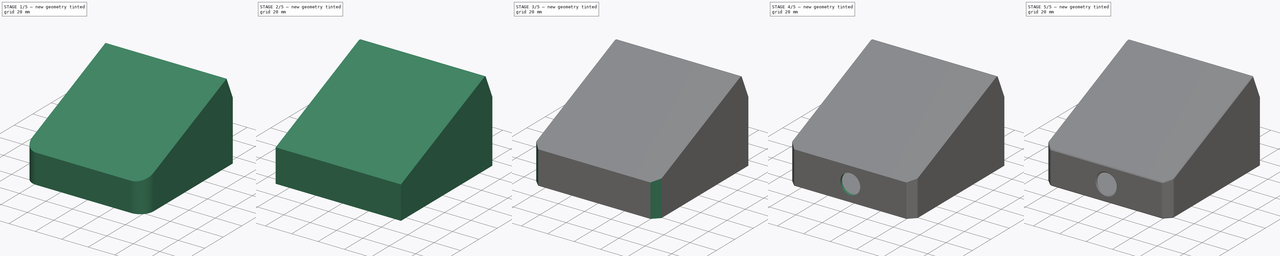
[diagram: build sequence overview — one tinted view per stage of 5, left to right]
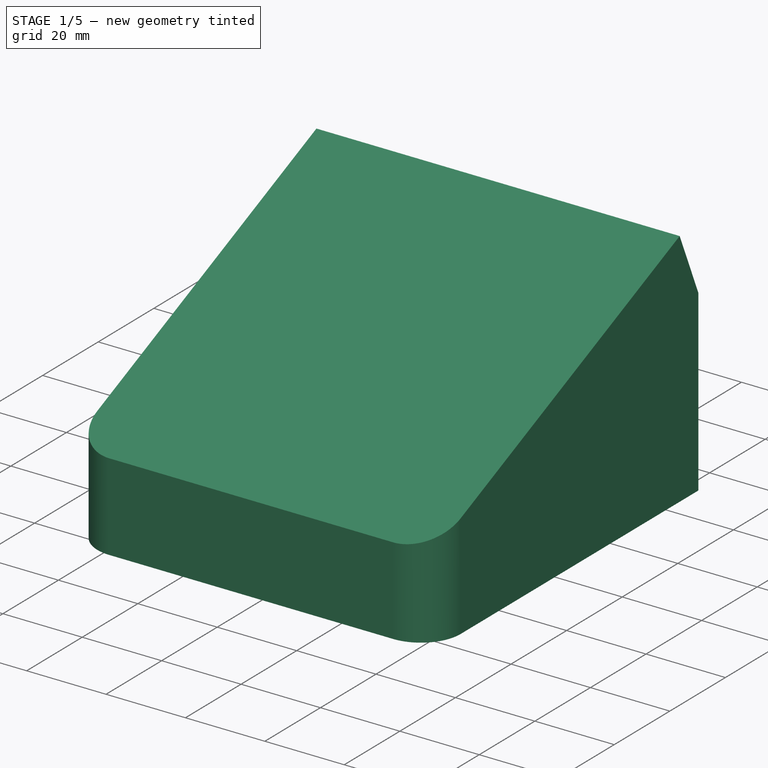
[diagram: stage 1 of 5 — iso view after this stage's code; geometry added in this stage tinted green]
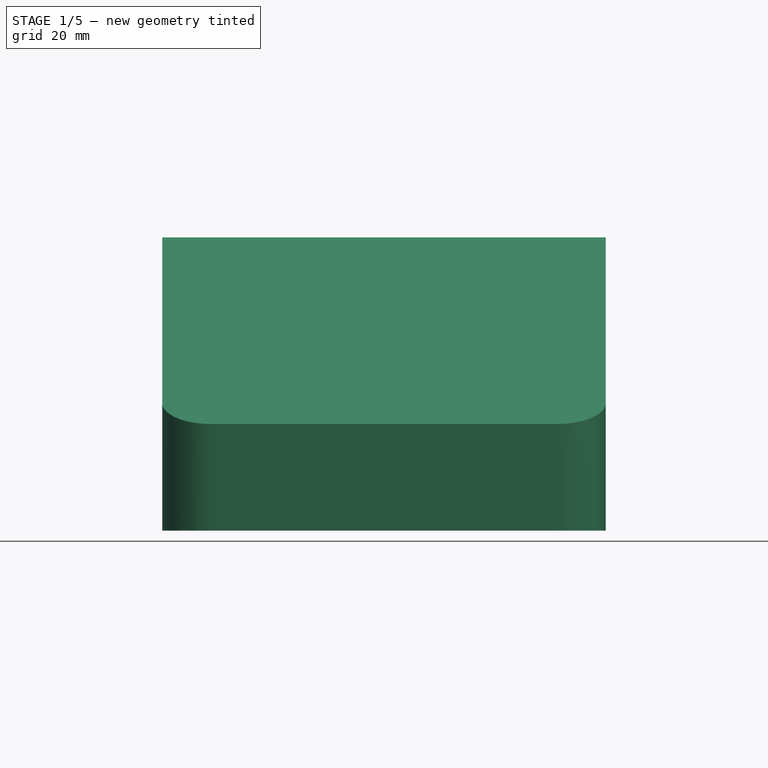
[diagram: stage 1 of 5 — front view after this stage's code; geometry added in this stage tinted green]
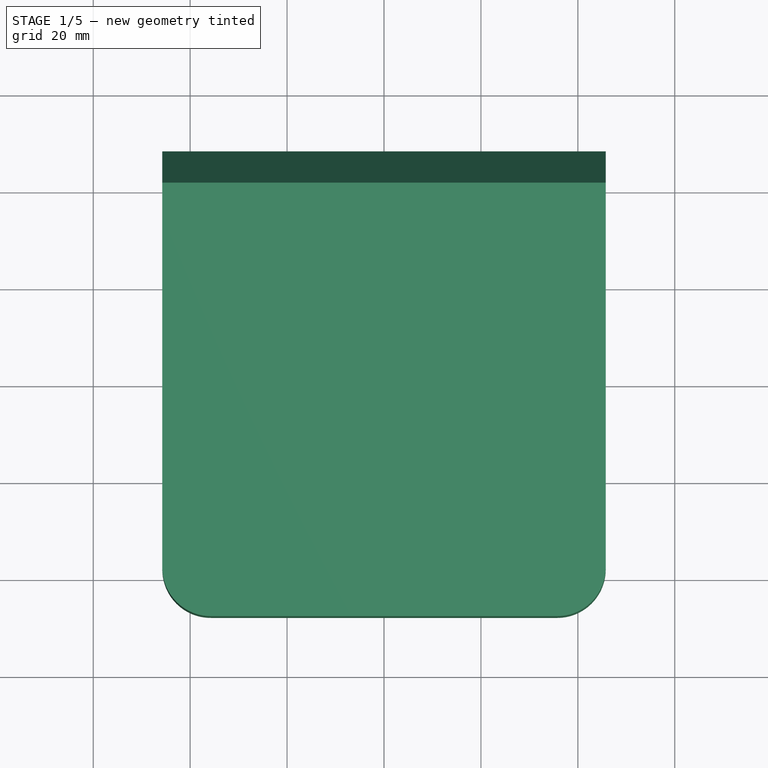
[diagram: stage 1 of 5 — top view after this stage's code; geometry added in this stage tinted green]
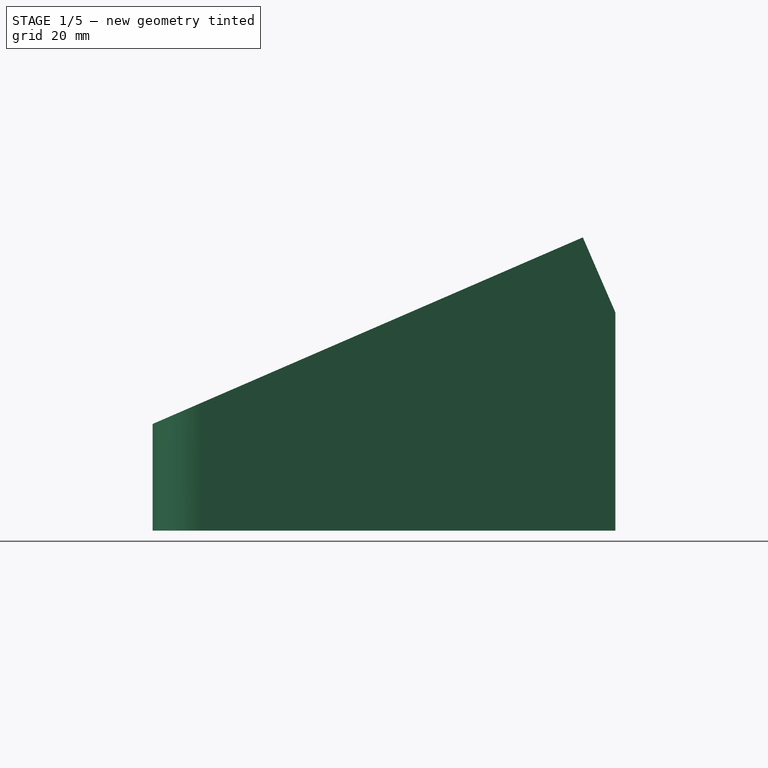
[diagram: stage 1 of 5 — right view after this stage's code; geometry added in this stage tinted green]
FCSTD DOCUMENT  (FreeCAD 1.2R20260311 (Git shallow))
Label: Sumup Solo protective case
License: All rights reserved
objects: Sketcher::SketchObject×8, PartDesign::Pocket×5, PartDesign::Pad×4, PartDesign::Chamfer×3, App::Point×2, PartDesign::Fillet×2, PartDesign::Body×2, PartDesign::SubShapeBinder×2, App::VarSet×1, PartDesign::Boolean×1, PartDesign::Mirrored×1
note: 66 computed .brp shape members not serialized (recipe doc carries the construction recipe); baked Part::Feature solids carry a one-line shape summary decoded from their .brp

FEATURE [App::Point] Origin001
  Role = Origin
FEATURE [Sketcher::SketchObject] Sketch
  ArcFitTolerance = 1e-06
  AttachmentSupport = -> [Origin]
  ExternalTypes = [0]
  FullyConstrained = true
  MakeInternals = false
  MapMode = 5
  expr: Constraints[10] = <<VarSet>>.Depth
  expr: Constraints[9] = <<VarSet>>.Width
  sketch-geometry (5):
    g0: LineSegment StartX=-45.75 StartY=-47.75 StartZ=0 EndX=45.75 EndY=-47.75 EndZ=0
    g1: LineSegment StartX=45.75 StartY=-47.75 StartZ=0 EndX=45.75 EndY=47.75 EndZ=0
    g2: LineSegment StartX=45.75 StartY=47.75 StartZ=0 EndX=-45.75 EndY=47.75 EndZ=0
    g3: LineSegment StartX=-45.75 StartY=47.75 StartZ=0 EndX=-45.75 EndY=-47.75 EndZ=0
    g4: GeomPoint [constr] X=0 Y=0 Z=0
  constraints (12):
    c: Coincident(g0,g1)
    c: Coincident(g1,g2)
    c: Coincident(g2,g3)
    c: Coincident(g3,g0)
    c: Horizontal(g0)
    c: Horizontal(g2)
    c: Vertical(g1)
    c: Vertical(g3)
    c: Symmetric(g2,g0,g4)
    c: Distance(g1,g3) = 91.5
    c: Distance(g0,g2) = 95.5
    c: Coincident(g4,g-1)
FEATURE [App::VarSet] VarSet
  Corner_r = 10
  Depth = 95.5
  Height = 60.5
  Wall = 1.8
  Width = 91.5
FEATURE [PartDesign::Pad] Pad
  Direction = (0,0,1)
  Length = 60.5
  Length2 = 10
  Profile = -> Sketch
  ReferenceAxis = -> Sketch [N_Axis]
  Refine = true
  SideType = 0
  Suppressed = false
  Type = 0
  Type2 = 0
  expr: Length = <<VarSet>>.Height
FEATURE [Sketcher::SketchObject] Sketch001
  ArcFitTolerance = 1e-06
  AttachmentSupport = -> [Origin]
  ExternalGeometry = -> [Pad]
  ExternalTypes = [0,0,0]
  FullyConstrained = true
  MakeInternals = false
  MapMode = 5
  Placement = pos=(0,0,0) rot=(0.57735,0.57735,0.57735;2.0944rad)
  sketch-geometry (7):
    g0: LineSegment StartX=-47.75 StartY=22 StartZ=0 EndX=41.0282 EndY=60.5 EndZ=0
    g1: LineSegment StartX=41.0282 StartY=60.5 StartZ=0 EndX=47.75 EndY=45 EndZ=0
    g2: LineSegment StartX=-47.75 StartY=22 StartZ=0 EndX=-57.75 EndY=22 EndZ=0
    g3: LineSegment StartX=-57.75 StartY=22 StartZ=0 EndX=-57.75 EndY=70.5 EndZ=0
    g4: LineSegment StartX=-57.75 StartY=70.5 StartZ=0 EndX=57.75 EndY=70.5 EndZ=0
    g5: LineSegment StartX=57.75 StartY=70.5 StartZ=0 EndX=57.75 EndY=45 EndZ=0
    g6: LineSegment StartX=57.75 StartY=45 StartZ=0 EndX=47.75 EndY=45 EndZ=0
  constraints (21):
    c: DistanceY(g-1,g0) = 22
    c: PointOnObject(g0,g-3)
    c: PointOnObject(g0,g-4)
    c: Coincident(g1,g0)
    c: PointOnObject(g1,g-5)
    c: Perpendicular(g1,g0)
    c: DistanceY(g-1,g1) = 45
    c: Coincident(g2,g0)
    c: Horizontal(g2)
    c: Coincident(g3,g2)
    c: Horizontal(g4)
    c: Coincident(g5,g4)
    c: Vertical(g5)
    c: Coincident(g6,g5)
    c: Coincident(g6,g1)
    c: Horizontal(g6)
    c: Vertical(g3)
    c: Coincident(g3,g4)
    c: Equal(g2,g6)
    c: DistanceX(g6,g6) = 10
    c: DistanceY(g-5,g4) = 10
FEATURE [PartDesign::Pocket] Pocket
  BaseFeature = -> Pad
  Direction = (-1,0,0)
  Length = 5
  Length2 = 5
  Profile = -> Sketch001
  ReferenceAxis = -> Sketch001 [N_Axis]
  Refine = true
  SideType = 2
  Suppressed = false
  Type = 1
  Type2 = 0
FEATURE [PartDesign::Fillet] Fillet
  Base = -> Pocket [Edge2,Edge4]
  BaseFeature = -> Pocket
  Radius = 10
  Refine = true
  SupportTransform = false
  Suppressed = false
  UseAllEdges = false
  expr: Radius = <<VarSet>>.Corner_r
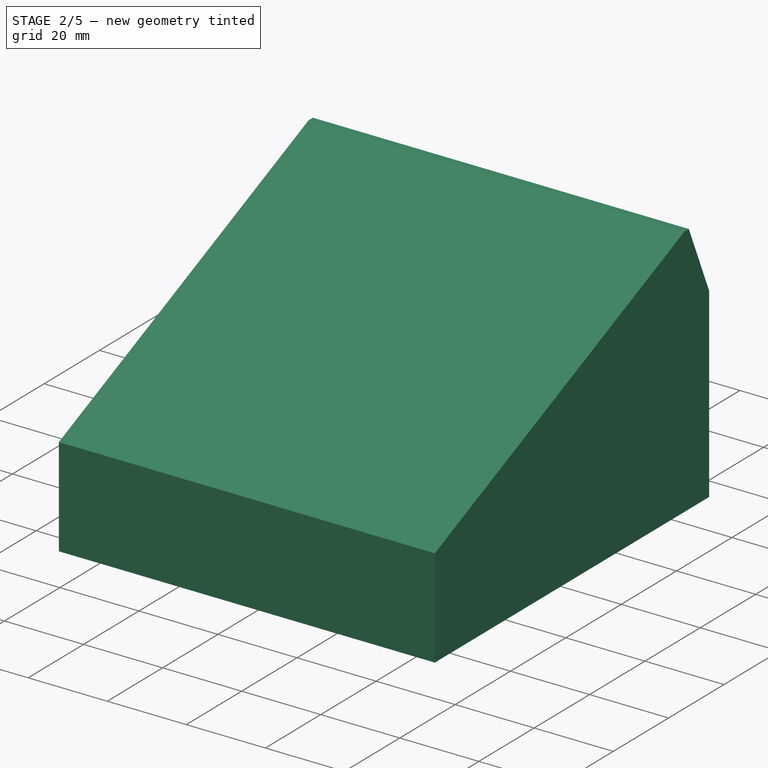
[diagram: stage 2 of 5 — iso view after this stage's code; geometry added in this stage tinted green]
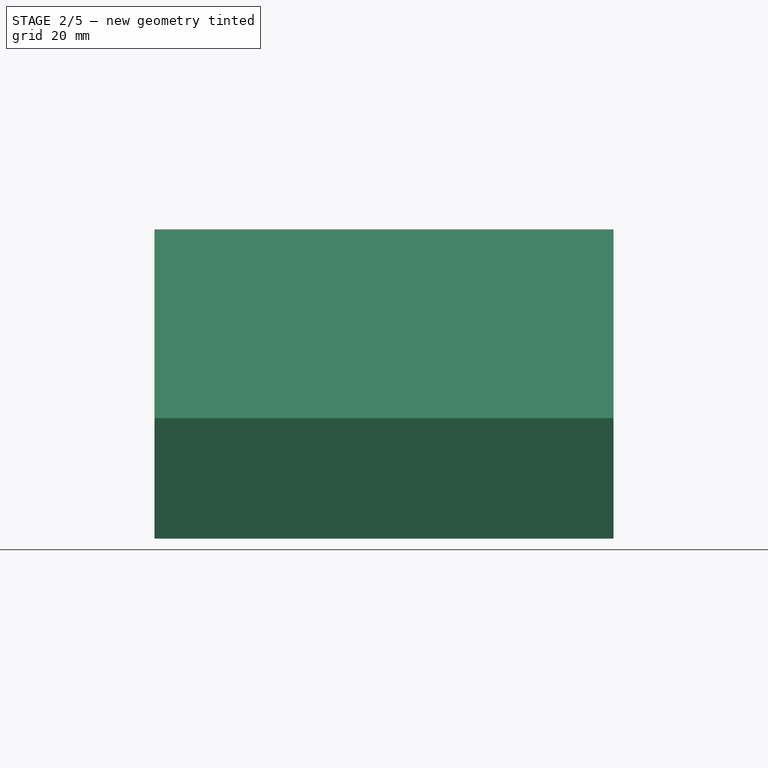
[diagram: stage 2 of 5 — front view after this stage's code; geometry added in this stage tinted green]
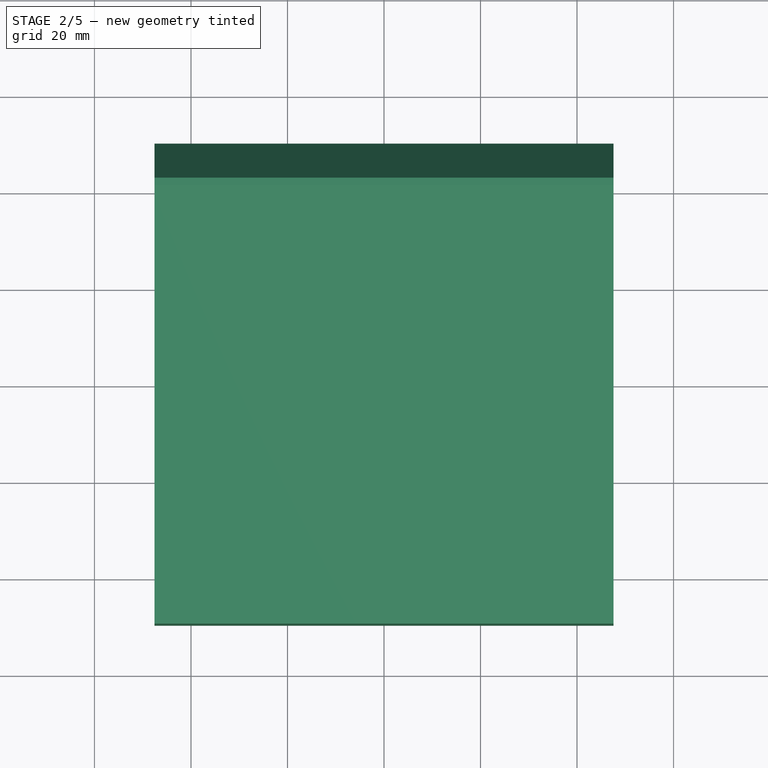
[diagram: stage 2 of 5 — top view after this stage's code; geometry added in this stage tinted green]
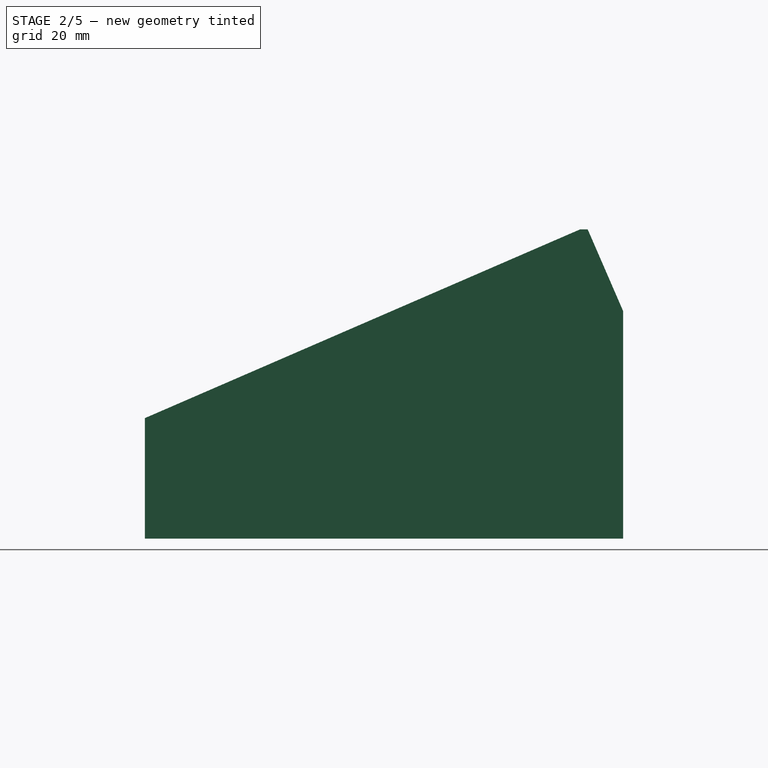
[diagram: stage 2 of 5 — right view after this stage's code; geometry added in this stage tinted green]
FEATURE [PartDesign::Body] Body  label="Solo"
  AllowCompound = true
  Group = -> [Sketch,Pad,Sketch001,Pocket,Fillet]
  Origin = -> Origin
  Tip = -> Fillet
FEATURE [Sketcher::SketchObject] Sketch002
  ArcFitTolerance = 1e-06
  AttachmentOffset = pos=(0,0,-1.8) rot=(0,0,1;0rad)
  AttachmentSupport = -> [Origin]
  ExternalTypes = [0]
  FullyConstrained = true
  MakeInternals = false
  MapMode = 5
  Placement = pos=(0,0,-1.8) rot=(0,0,1;0rad)
  expr: .AttachmentOffset.Base.z = -<<VarSet>>.Wall
  expr: Constraints[10] = <<VarSet>>.Depth + 2 * <<VarSet>>.Wall
  expr: Constraints[9] = <<VarSet>>.Width + 2 * <<VarSet>>.Wall
  sketch-geometry (5):
    g0: LineSegment StartX=-47.55 StartY=-49.55 StartZ=0 EndX=47.55 EndY=-49.55 EndZ=0
    g1: LineSegment StartX=47.55 StartY=-49.55 StartZ=0 EndX=47.55 EndY=49.55 EndZ=0
    g2: LineSegment StartX=47.55 StartY=49.55 StartZ=0 EndX=-47.55 EndY=49.55 EndZ=0
    g3: LineSegment StartX=-47.55 StartY=49.55 StartZ=0 EndX=-47.55 EndY=-49.55 EndZ=0
    g4: GeomPoint [constr] X=0 Y=0 Z=0
  constraints (12):
    c: Coincident(g0,g1)
    c: Coincident(g1,g2)
    c: Coincident(g2,g3)
    c: Coincident(g3,g0)
    c: Horizontal(g0)
    c: Horizontal(g2)
    c: Vertical(g1)
    c: Vertical(g3)
    c: Symmetric(g2,g0,g4)
    c: Distance(g1,g3) = 95.1
    c: Distance(g0,g2) = 99.1
    c: Coincident(g4,g-1)
FEATURE [App::Point] Origin003
  Role = Origin
FEATURE [PartDesign::Pad] Pad001
  Direction = (0,0,1)
  Length = 64.1
  Length2 = 10
  Profile = -> Sketch002
  ReferenceAxis = -> Sketch002 [N_Axis]
  Refine = true
  SideType = 0
  Suppressed = false
  Type = 0
  Type2 = 0
  expr: Length = <<VarSet>>.Height + 2 * <<VarSet>>.Wall
FEATURE [PartDesign::SubShapeBinder] Binder
  BindCopyOnChange = 0
  BindMode = 0
  ClaimChildren = false
  Context = -> Body001 [Binder.]
  Fuse = false
  MakeFace = true
  OffsetFill = false
  OffsetIntersection = false
  OffsetJoinType = 0
  OffsetOpenResult = false
  PartialLoad = false
  Refine = true
  Relative = true
  Support = -> [Body]
  _Version = 2
FEATURE [PartDesign::Boolean] Boolean
  BaseFeature = -> Pad001
  Group = -> [Binder]
  Refine = true
  Suppressed = false
  Type = 1
FEATURE [Sketcher::SketchObject] Sketch003
  ArcFitTolerance = 1e-06
  AttachmentSupport = -> [Origin002]
  ExternalGeometry = -> [Boolean]
  ExternalTypes = [0,0,0]
  FullyConstrained = true
  MakeInternals = false
  MapMode = 5
  Placement = pos=(0,0,0) rot=(0.57735,0.57735,0.57735;2.0944rad)
  expr: Constraints[11] = <<VarSet>>.Wall
  expr: Constraints[9] = <<VarSet>>.Wall
  sketch-geometry (5):
    g0: LineSegment StartX=-57.75 StartY=19.6253 StartZ=0 EndX=41.9634 EndY=62.8676 EndZ=0
    g1: LineSegment StartX=41.9634 StartY=62.8676 StartZ=0 EndX=57.75 EndY=26.4649 EndZ=0
    g2: LineSegment StartX=57.75 StartY=26.4649 StartZ=0 EndX=57.75 EndY=72.8676 EndZ=0
    g3: LineSegment StartX=57.75 StartY=72.8676 StartZ=0 EndX=-57.75 EndY=72.8676 EndZ=0
    g4: LineSegment StartX=-57.75 StartY=72.8676 StartZ=0 EndX=-57.75 EndY=19.6253 EndZ=0
  constraints (15):
    c: Coincident(g0,g1)
    c: Coincident(g1,g2)
    c: Vertical(g2)
    c: Coincident(g2,g3)
    c: Horizontal(g3)
    c: Coincident(g3,g4)
    c: Coincident(g4,g0)
    c: Vertical(g4)
    c: Parallel(g-4,g0)
    c: Distance(g-4,g0) = 1.8
    c: Parallel(g-3,g1)
    c: Distance(g-3,g1) = 1.8
    c: DistanceX(g-3,g1) = 10
    c: DistanceY(g0,g2) = 10
    c: DistanceX(g0,g-5) = 10
FEATURE [PartDesign::Pocket] Pocket001
  BaseFeature = -> Boolean
  Direction = (-1,0,0)
  Length = 5
  Length2 = 5
  Profile = -> Sketch003
  ReferenceAxis = -> Sketch003 [N_Axis]
  Refine = true
  SideType = 2
  Suppressed = false
  Type = 1
  Type2 = 0
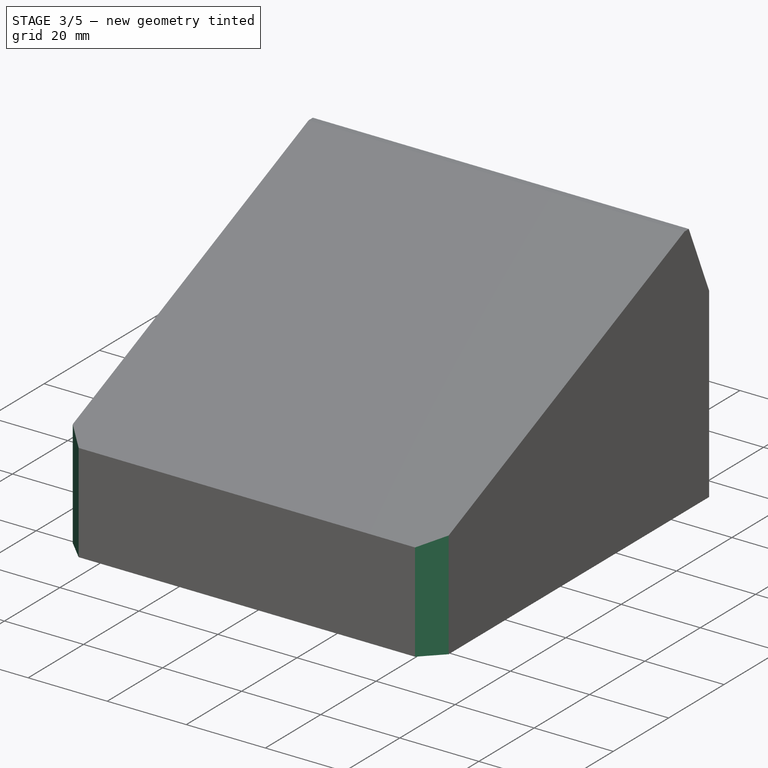
[diagram: stage 3 of 5 — iso view after this stage's code; geometry added in this stage tinted green]
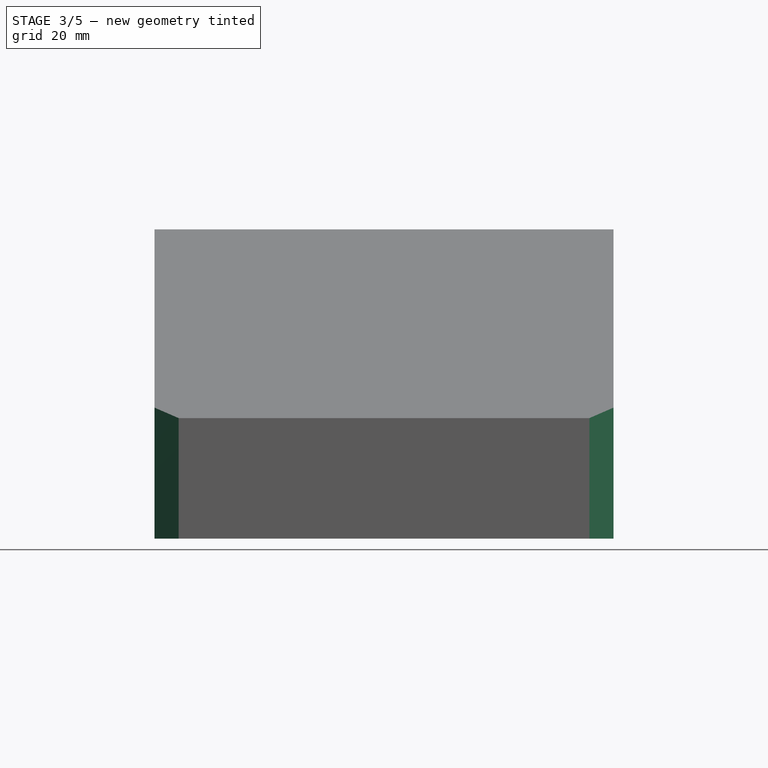
[diagram: stage 3 of 5 — front view after this stage's code; geometry added in this stage tinted green]
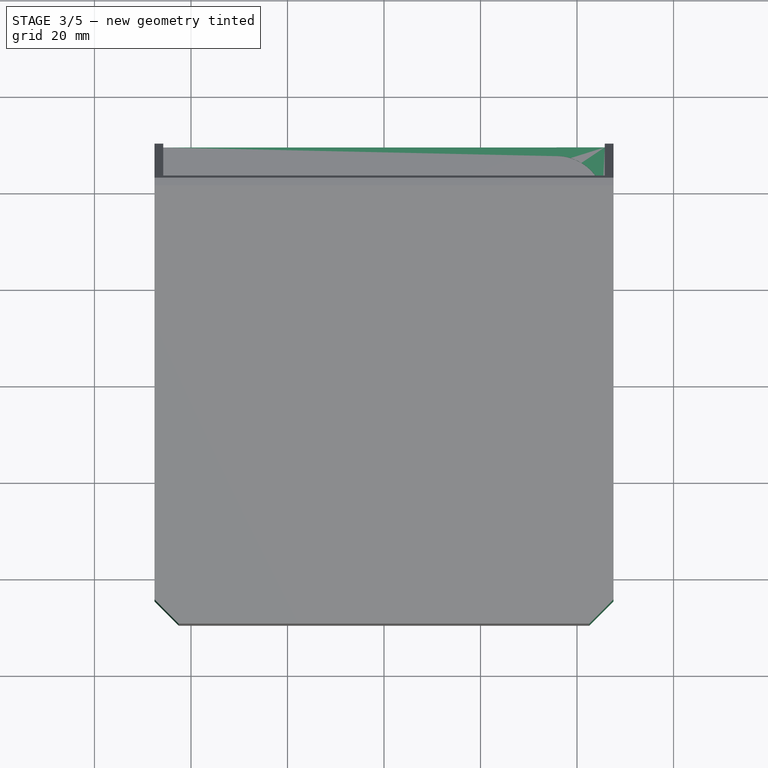
[diagram: stage 3 of 5 — top view after this stage's code; geometry added in this stage tinted green]
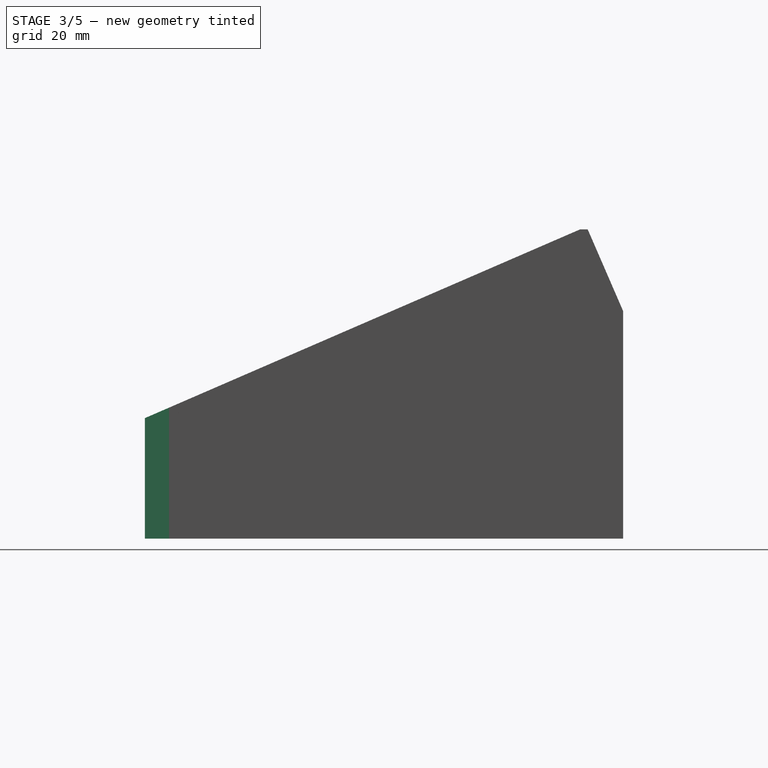
[diagram: stage 3 of 5 — right view after this stage's code; geometry added in this stage tinted green]
FEATURE [PartDesign::Chamfer] Chamfer
  Angle = 45
  Base = -> Pocket001 [Edge2,Edge4]
  BaseFeature = -> Pocket001
  ChamferType = 0
  FlipDirection = false
  Refine = true
  Size = 5
  Size2 = 1
  SupportTransform = false
  Suppressed = false
  UseAllEdges = false
  expr: Size = <<VarSet>>.Corner_r / 2
FEATURE [Sketcher::SketchObject] Sketch005
  ArcFitTolerance = 1e-06
  AttachmentSupport = -> [Chamfer]
  ExternalGeometry = -> [Chamfer]
  ExternalTypes = [0,0,0,0]
  FullyConstrained = true
  MakeInternals = false
  MapMode = 5
  Placement = pos=(0,47.75,0) rot=(1,0,0;1.5708rad)
  sketch-geometry (3):
    g0: LineSegment StartX=-45.75 StartY=0 StartZ=0 EndX=-45.75 EndY=50.3735 EndZ=0
    g1: LineSegment StartX=45.75 StartY=0 StartZ=0 EndX=45.75 EndY=50.3735 EndZ=0
    g2: LineSegment StartX=45.75 StartY=50.3735 StartZ=0 EndX=-45.75 EndY=50.3735 EndZ=0
  constraints (8):
    c: Coincident(g0,g-4)
    c: Vertical(g0)
    c: Coincident(g1,g-5)
    c: Vertical(g1)
    c: Coincident(g2,g1)
    c: Coincident(g2,g0)
    c: Horizontal(g2)
    c: DistanceY(g-6,g1) = 5
FEATURE [PartDesign::Pocket] Pocket002
  BaseFeature = -> Chamfer
  Direction = (0,1,-2e-16)
  Length = 5
  Length2 = 5
  Profile = -> Sketch005
  ReferenceAxis = -> Sketch005 [N_Axis]
  Refine = true
  SideType = 0
  Suppressed = false
  Type = 1
  Type2 = 0
FEATURE [PartDesign::Pocket] Pocket003
  BaseFeature = -> Pocket002
  Direction = (0,0.917445,0.397864)
  Length = 5
  Length2 = 5
  Profile = -> Pocket002 [Face14]
  Refine = true
  SideType = 0
  Suppressed = false
  Type = 0
  Type2 = 0
FEATURE [PartDesign::SubShapeBinder] Binder001
  BindCopyOnChange = 0
  BindMode = 0
  ClaimChildren = false
  Context = -> Body001 [Binder001.]
  Fuse = false
  MakeFace = true
  OffsetFill = false
  OffsetIntersection = false
  OffsetJoinType = 0
  OffsetOpenResult = false
  PartialLoad = false
  Refine = true
  Relative = true
  Support = -> [Body[Fillet.Face2]]
  _Version = 2
FEATURE [Sketcher::SketchObject] Sketch006
  ArcFitTolerance = 1e-06
  AttachmentSupport = -> [Origin002]
  ExternalGeometry = -> [Binder001,Pocket003]
  ExternalTypes = [0,0]
  FullyConstrained = true
  MakeInternals = false
  MapMode = 5
  expr: Constraints[12] = <<VarSet>>.Wall / 2
  expr: Constraints[3] = <<VarSet>>.Corner_r
  sketch-geometry (6):
    g0: ArcOfCircle CenterX=35.75 CenterY=37.75 CenterZ=0 NormalX=0 NormalY=0 NormalZ=1 AngleXU=0 Radius=10 StartAngle=2e-16 EndAngle=1.5708
    g1: LineSegment StartX=35.75 StartY=47.75 StartZ=0 EndX=35.75 EndY=49.55 EndZ=0
    g2: LineSegment StartX=35.75 StartY=49.55 StartZ=0 EndX=45.75 EndY=49.55 EndZ=0
    g3: LineSegment StartX=45.75 StartY=49.55 StartZ=0 EndX=46.65 EndY=49.55 EndZ=0
    g4: LineSegment StartX=46.65 StartY=49.55 StartZ=0 EndX=46.65 EndY=37.75 EndZ=0
    g5: LineSegment StartX=46.65 StartY=37.75 StartZ=0 EndX=45.75 EndY=37.75 EndZ=0
  constraints (18):
    c: PointOnObject(g0,g-8)
    c: PointOnObject(g0,g-7)
    c: Horizontal(g0,g0)
    c: Radius(g0) = 10
    c: Vertical(g0,g0)
    c: Coincident(g1,g0)
    c: PointOnObject(g1,g-9)
    c: Vertical(g1)
    c: Coincident(g2,g1)
    c: Coincident(g2,g-9)
    c: Coincident(g3,g2)
    c: Horizontal(g3)
    c: DistanceX(g3,g3) = 0.9
    c: Coincident(g4,g3)
    c: Vertical(g4)
    c: Coincident(g5,g4)
    c: Coincident(g5,g0)
    c: Horizontal(g5)
FEATURE [PartDesign::Pad] Pad002
  BaseFeature = -> Pocket003
  Direction = (0,0,1)
  Length = 1.6
  Length2 = 10
  Profile = -> Sketch006
  ReferenceAxis = -> Sketch006 [N_Axis]
  Refine = true
  SideType = 0
  Suppressed = false
  Type = 0
  Type2 = 0
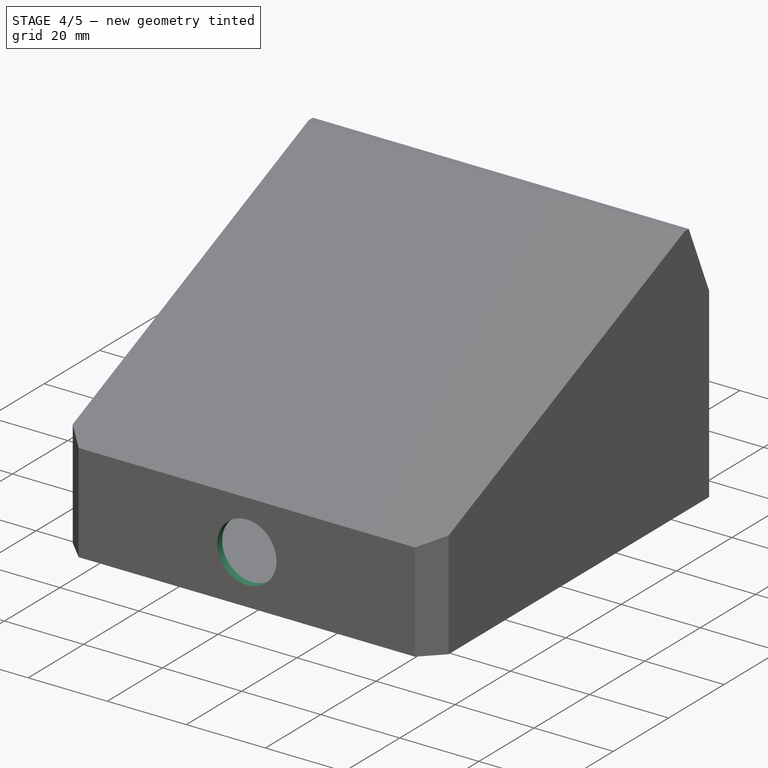
[diagram: stage 4 of 5 — iso view after this stage's code; geometry added in this stage tinted green]
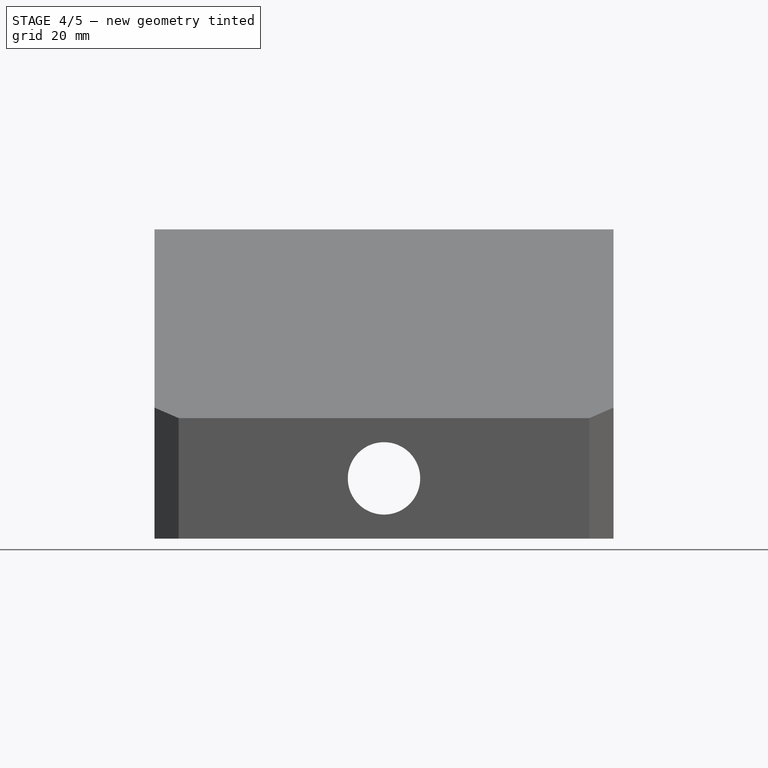
[diagram: stage 4 of 5 — front view after this stage's code; geometry added in this stage tinted green]
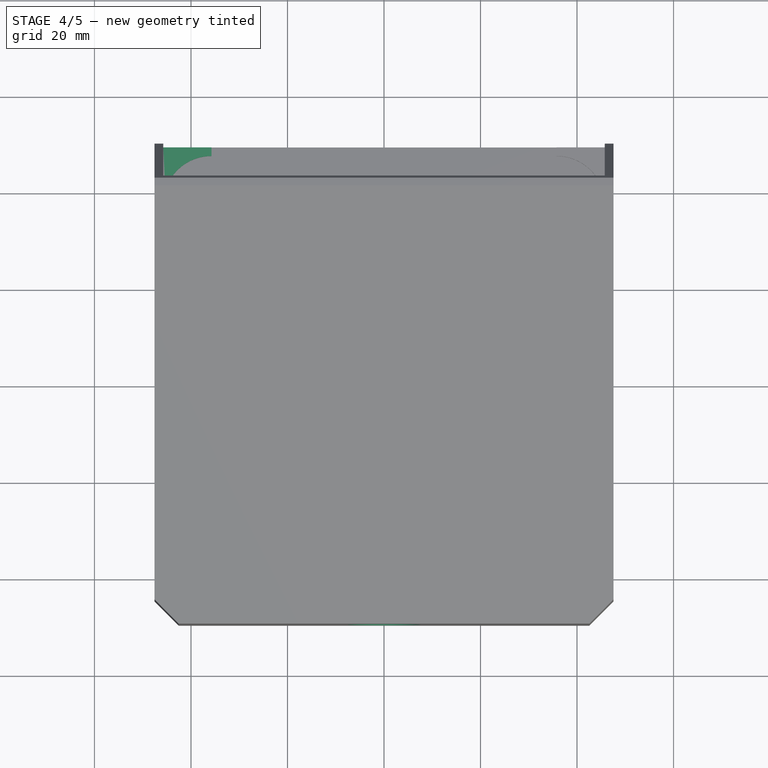
[diagram: stage 4 of 5 — top view after this stage's code; geometry added in this stage tinted green]
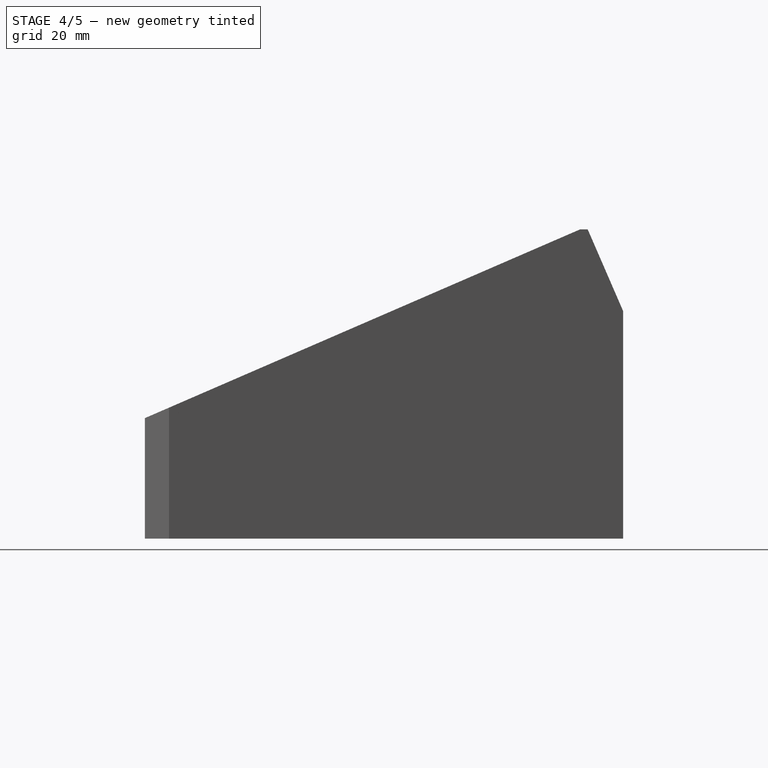
[diagram: stage 4 of 5 — right view after this stage's code; geometry added in this stage tinted green]
FEATURE [PartDesign::Mirrored] Mirrored
  BaseFeature = -> Pad002
  MirrorPlane = -> Sketch006 [V_Axis]
  Originals = -> [Pad002]
  Refine = true
  Suppressed = false
  TransformMode = 0
FEATURE [Sketcher::SketchObject] Sketch007
  ArcFitTolerance = 1e-06
  AttachmentSupport = -> [Origin002]
  ExternalGeometry = -> [Mirrored]
  ExternalTypes = [0]
  FullyConstrained = true
  MakeInternals = false
  MapMode = 5
  Placement = pos=(0,0,0) rot=(0.57735,0.57735,0.57735;2.0944rad)
  sketch-geometry (5):
    g0: LineSegment StartX=35.5367 StartY=58.1185 StartZ=0 EndX=37.6336 EndY=59.0279 EndZ=0
    g1: ArcOfCircle CenterX=36.3324 CenterY=56.2836 CenterZ=0 NormalX=0 NormalY=0 NormalZ=1 AngleXU=0 Radius=2 StartAngle=0.732998 EndAngle=1.97998
    g2: LineSegment StartX=38.1509 StartY=57.8352 StartZ=0 EndX=37.6336 EndY=59.0279 EndZ=0
    g3: ArcOfCircle CenterX=37.9674 CenterY=57.7557 CenterZ=0 NormalX=0 NormalY=0 NormalZ=1 AngleXU=0 Radius=0.2 StartAngle=3.87459 EndAngle=6.69237
    g4: LineSegment [constr] StartX=38.047 StartY=57.5722 StartZ=0 EndX=37.4502 EndY=58.9483 EndZ=0
  constraints (15):
    c: PointOnObject(g0,g-3)
    c: PointOnObject(g0,g-3)
    c: Distance(g0,g-3) = 5.5
    c: Coincident(g2,g0)
    c: Perpendicular(g2,g0)
    c: Tangent(g1,g0) = 1.5708
    c: Radius(g1) = 2
    c: Tangent(g1,g3) = 1.5708
    c: Tangent(g2,g3) = -1.5708
    c: Radius(g3) = 0.2
    c: PointOnObject(g4,g3)
    c: PointOnObject(g4,g0)
    c: Perpendicular(g4,g0)
    c: Perpendicular(g3,g4)
    c: Distance(g4,g4) = 1.5
FEATURE [PartDesign::Pad] Pad003
  BaseFeature = -> Mirrored
  Direction = (1,0,0)
  Length = 15
  Length2 = 10
  Profile = -> Sketch007
  ReferenceAxis = -> Sketch007 [N_Axis]
  Refine = true
  SideType = 2
  Suppressed = false
  Type = 0
  Type2 = 0
FEATURE [Sketcher::SketchObject] Sketch008
  ArcFitTolerance = 1e-06
  AttachmentSupport = -> [Pad003]
  ExternalGeometry = -> [Pad003]
  ExternalTypes = [0,0]
  FullyConstrained = true
  MakeInternals = false
  MapMode = 5
  Placement = pos=(0,-49.55,0) rot=(1,0,0;1.5708rad)
  sketch-geometry (2):
    g0: LineSegment [constr] StartX=-7.1e-15 StartY=23.1814 StartZ=0 EndX=0 EndY=-1.8 EndZ=0
    g1: Circle CenterX=-3.6e-15 CenterY=10.6907 CenterZ=0 NormalX=0 NormalY=0 NormalZ=1 AngleXU=0 Radius=7.5
  constraints (4):
    c: Symmetric(g-3,g-3,g0)
    c: Symmetric(g-4,g-4,g0)
    c: Diameter(g1) = 15
    c: Symmetric(g0,g0,g1)
FEATURE [PartDesign::Pocket] Pocket004
  BaseFeature = -> Pad003
  Direction = (0,1,-2e-16)
  Length = 5
  Length2 = 5
  Profile = -> Sketch008
  ReferenceAxis = -> Sketch008 [N_Axis]
  Refine = true
  SideType = 2
  Suppressed = false
  Type = 0
  Type2 = 0
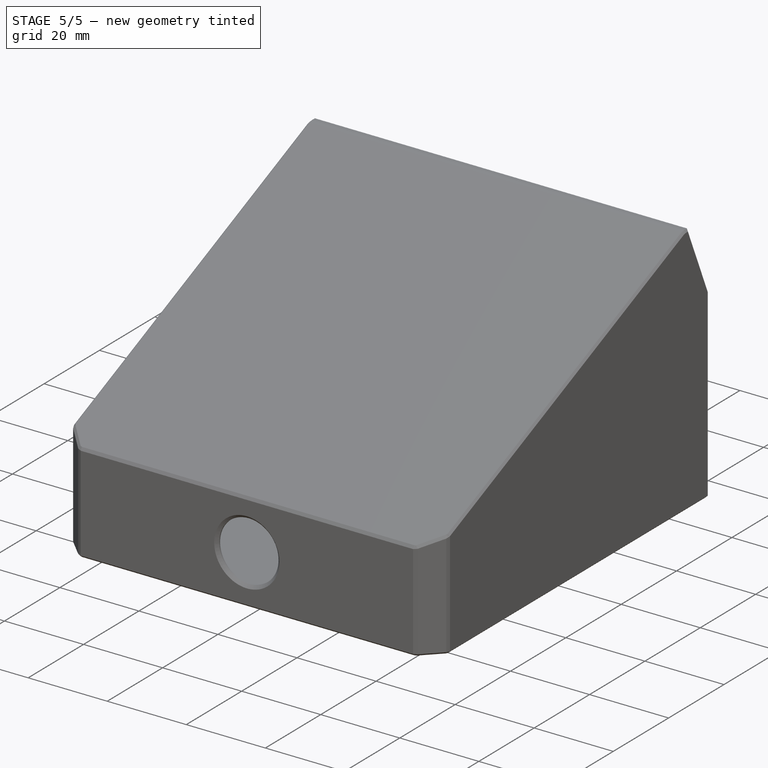
[diagram: stage 5 of 5 — iso view after this stage's code; geometry added in this stage tinted green]
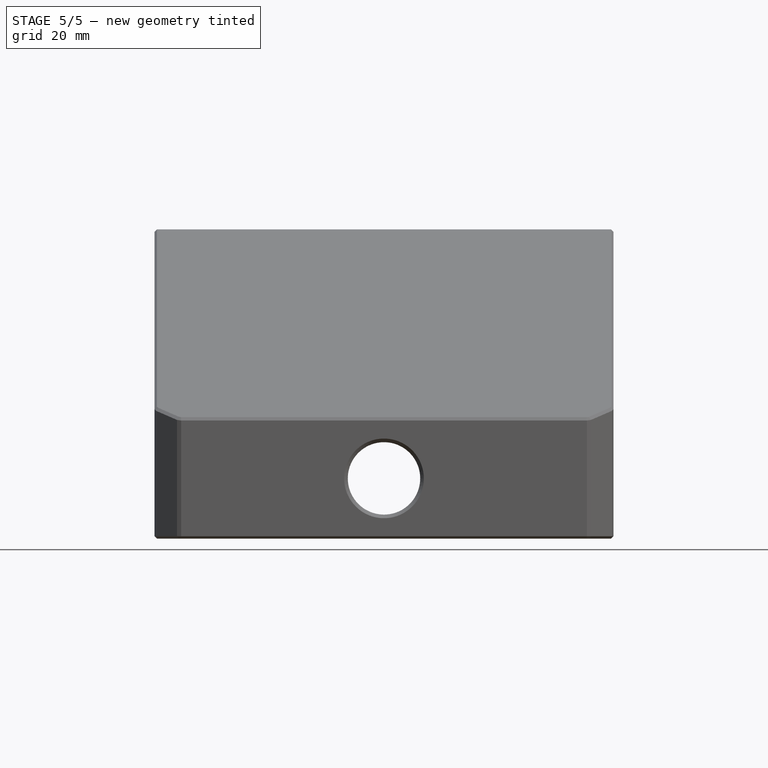
[diagram: stage 5 of 5 — front view after this stage's code; geometry added in this stage tinted green]
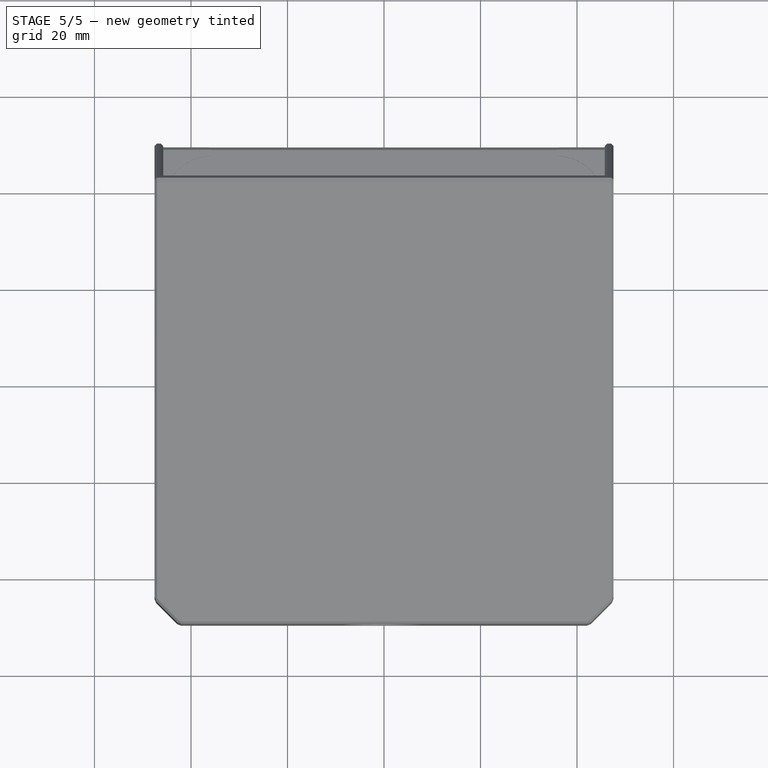
[diagram: stage 5 of 5 — top view after this stage's code; geometry added in this stage tinted green]
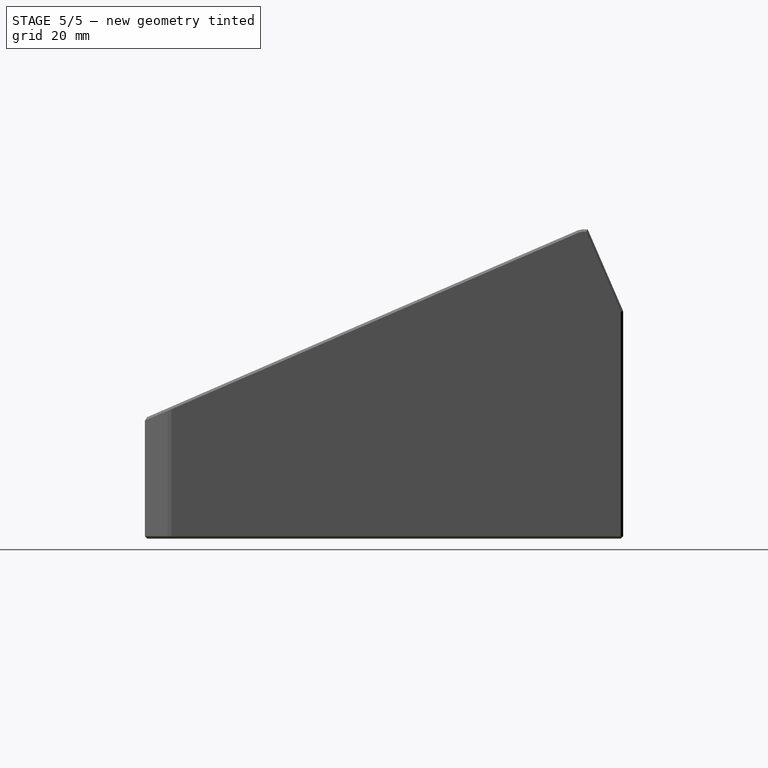
[diagram: stage 5 of 5 — right view after this stage's code; geometry added in this stage tinted green]
FEATURE [PartDesign::Chamfer] Chamfer001
  Angle = 45
  Base = -> Pocket004 [Edge10,Edge34]
  BaseFeature = -> Pocket004
  ChamferType = 0
  FlipDirection = false
  Refine = true
  Size = 0.75
  Size2 = 1
  SupportTransform = false
  Suppressed = false
  UseAllEdges = false
FEATURE [PartDesign::Fillet] Fillet001
  Base = -> Chamfer001 [Edge36,Edge28]
  BaseFeature = -> Chamfer001
  Radius = 1
  Refine = true
  SupportTransform = false
  Suppressed = false
  UseAllEdges = false
FEATURE [PartDesign::Chamfer] Chamfer002
  Angle = 45
  Base = -> Fillet001 [Face2,Face9,Face8,Face1,Face4,Face6,Face19]
  BaseFeature = -> Fillet001
  ChamferType = 0
  FlipDirection = false
  Refine = true
  Size = 0.5
  Size2 = 1
  SupportTransform = false
  Suppressed = false
  UseAllEdges = false
FEATURE [PartDesign::Body] Body001  label="Case"
  AllowCompound = true
  Group = -> [Sketch002,Pad001,Boolean,Sketch003,Pocket001,Chamfer,Sketch005,Pocket002,Pocket003,Binder001,Sketch006,Pad002,Mirrored,Sketch007,Pad003,Sketch008,Pocket004,Chamfer001,Fillet001,Chamfer002]
  Origin = -> Origin002
  Tip = -> Chamfer002
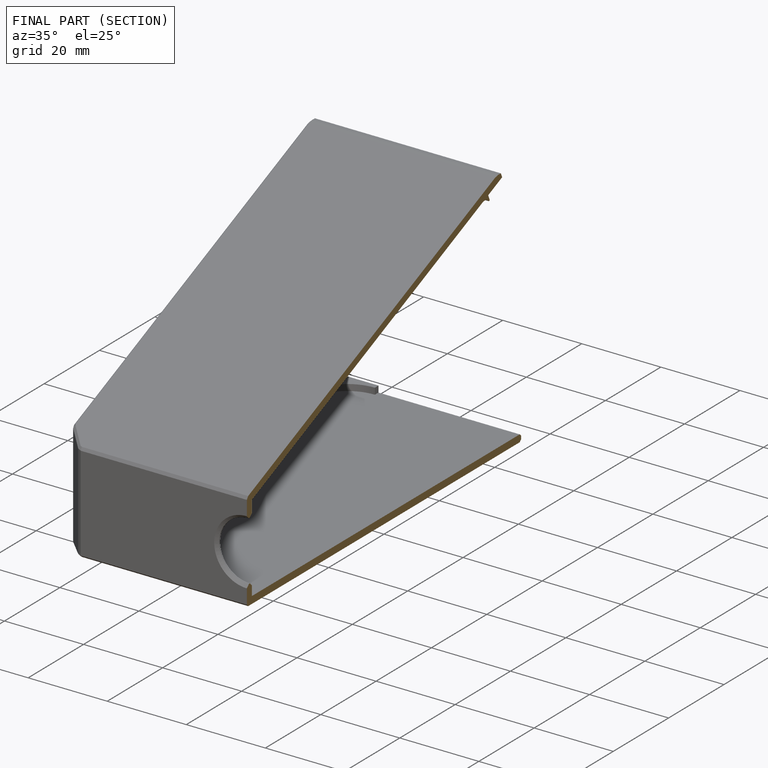
[diagram: finished part — half-section view (interior)]
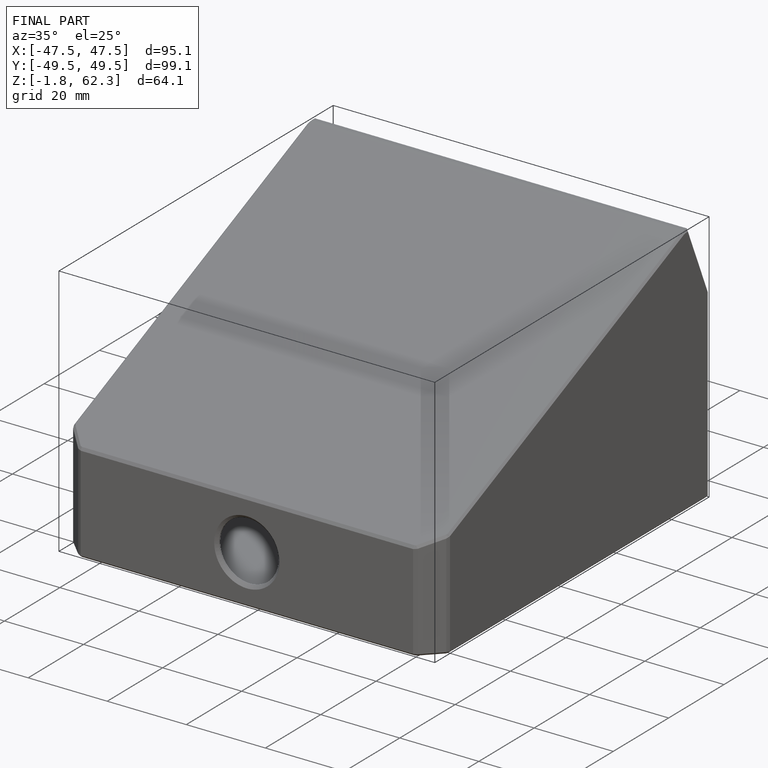
[diagram: finished part — iso view with bounding-box wireframe]
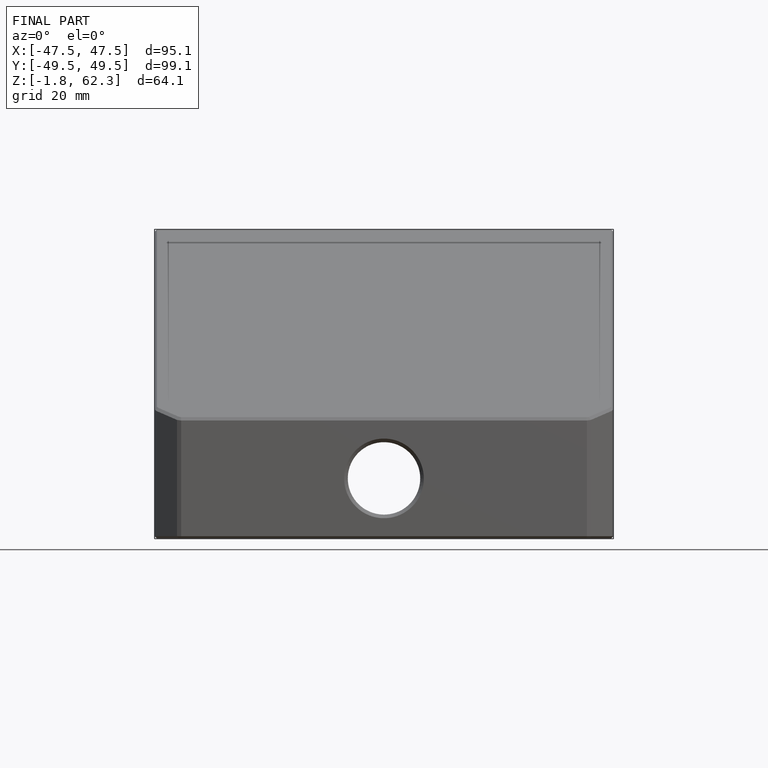
[diagram: finished part — front view with bounding-box wireframe]
